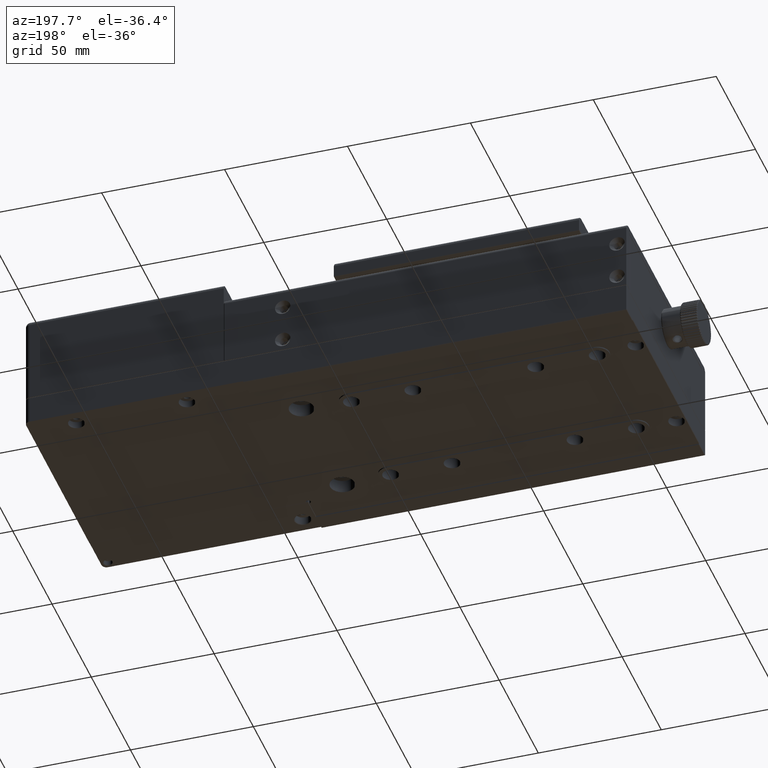
[diagram: clean part render]
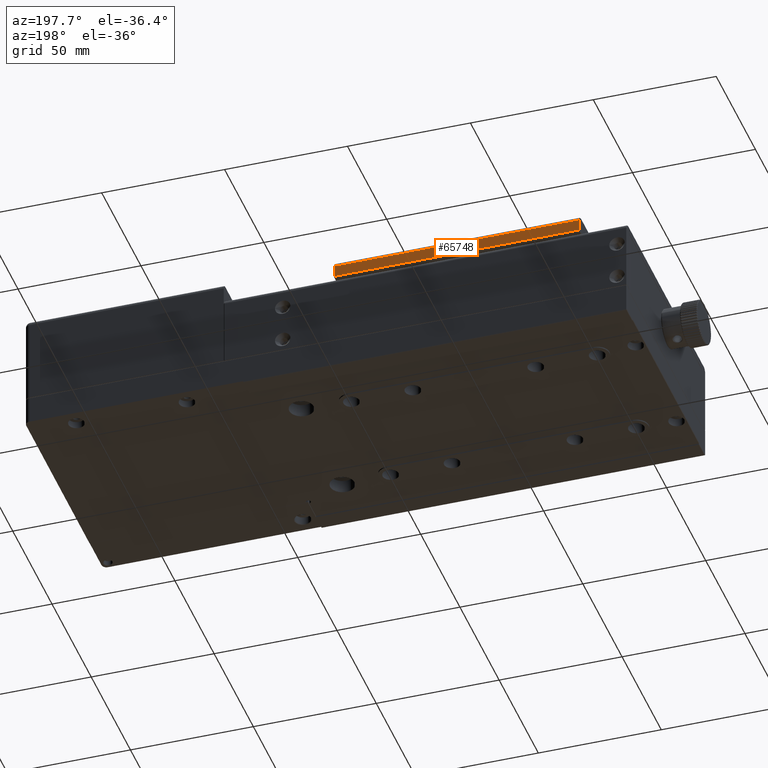
[diagram: same view with one face highlighted and labeled with its STEP entity id]
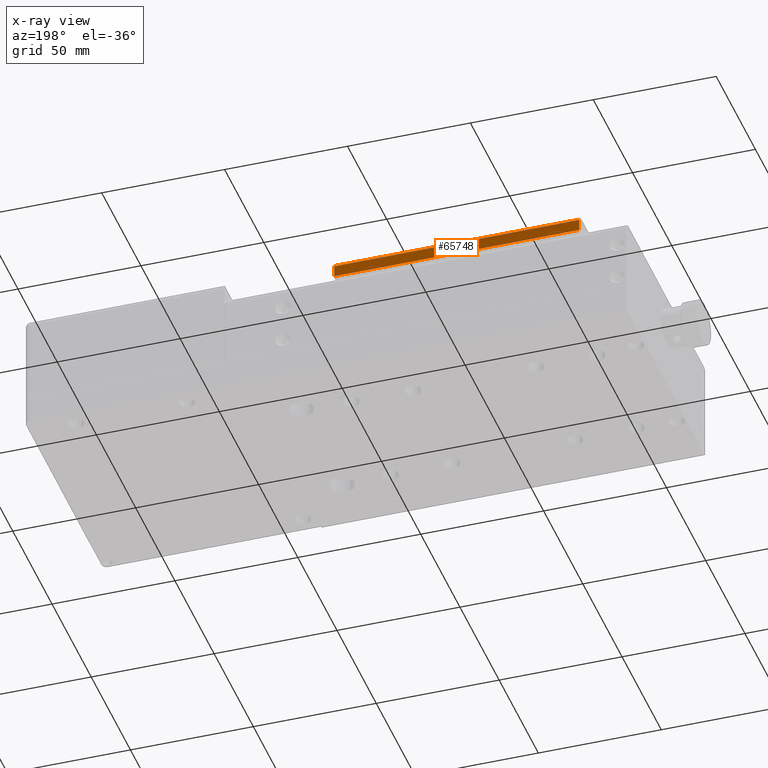
[diagram: x-ray of the same camera — body ghosted, the highlighted face saturated]
A machine part, auxiliary view. The second image highlights one B-rep face of the part: STEP entity #65748.
The next image is the same camera in x-ray: the body ghosted, the highlighted face saturated — about 0% of this face is hidden behind the body in this view.
In plain terms, the highlighted planar face has unit normal (0, -1, 0).
Its self-contained STEP definition (entity closure, byte-faithful):
#1956 = VERTEX_POINT ( 'NONE', #5916 ) ;
#4065 = VECTOR ( 'NONE', #5782, 1000.000000000000000 ) ;
#4462 = DIRECTION ( 'NONE',  ( 1.000000000000000000, 0.000000000000000000, 0.000000000000000000 ) ) ;
#4562 = ORIENTED_EDGE ( 'NONE', *, *, #65717, .T. ) ;
#5427 = LINE ( 'NONE', #17873, #4065 ) ;
#5782 = DIRECTION ( 'NONE',  ( -1.000000000000000000, 0.000000000000000000, 0.000000000000000000 ) ) ;
#5811 = CARTESIAN_POINT ( 'NONE',  ( -49.92461867118219487, 59.99424858742489874, 44.99999999999864286 ) ) ;
#5916 = CARTESIAN_POINT ( 'NONE',  ( -49.92461867118219487, 59.99424858742489874, 42.49999999999864997 ) ) ;
#6260 = VERTEX_POINT ( 'NONE', #12522 ) ;
#11400 = PLANE ( 'NONE',  #26406 ) ;
#12522 = CARTESIAN_POINT ( 'NONE',  ( -149.5246186711819973, 59.99424858742489874, 37.69999999999865281 ) ) ;
#14097 = VERTEX_POINT ( 'NONE', #33759 ) ;
#14422 = EDGE_LOOP ( 'NONE', ( #49289, #59623, #4562, #54656 ) ) ;
#15031 = EDGE_CURVE ( 'NONE', #14097, #6260, #5427, .T. ) ;
#17521 = DIRECTION ( 'NONE',  ( 0.000000000000000000, 0.000000000000000000, -1.000000000000000000 ) ) ;
#17873 = CARTESIAN_POINT ( 'NONE',  ( -149.7246186711821849, 59.99424858742489874, 37.69999999999865281 ) ) ;
#21330 = DIRECTION ( 'NONE',  ( 0.000000000000000000, 0.000000000000000000, -1.000000000000000000 ) ) ;
#22412 = CARTESIAN_POINT ( 'NONE',  ( -49.72461867118209966, 59.99424858742489874, 42.49999999999864997 ) ) ;
#22931 = CARTESIAN_POINT ( 'NONE',  ( -149.5246186711819973, 59.99424858742489874, 44.99999999999864286 ) ) ;
#26406 = AXIS2_PLACEMENT_3D ( 'NONE', #67395, #44335, #21330 ) ;
#27082 = LINE ( 'NONE', #5811, #62152 ) ;
#33759 = CARTESIAN_POINT ( 'NONE',  ( -49.92461867118219487, 59.99424858742489874, 37.69999999999865281 ) ) ;
#41486 = VECTOR ( 'NONE', #60613, 1000.000000000000000 ) ;
#42724 = EDGE_CURVE ( 'NONE', #1956, #14097, #27082, .T. ) ;
#43982 = FACE_OUTER_BOUND ( 'NONE', #14422, .T. ) ;
#44335 = DIRECTION ( 'NONE',  ( 0.000000000000000000, -1.000000000000000000, 0.000000000000000000 ) ) ;
#49289 = ORIENTED_EDGE ( 'NONE', *, *, #15031, .T. ) ;
#50228 = VERTEX_POINT ( 'NONE', #57723 ) ;
#54590 = LINE ( 'NONE', #22412, #57933 ) ;
#54656 = ORIENTED_EDGE ( 'NONE', *, *, #42724, .T. ) ;
#55834 = LINE ( 'NONE', #22931, #41486 ) ;
#57723 = CARTESIAN_POINT ( 'NONE',  ( -149.5246186711819973, 59.99424858742489874, 42.49999999999864997 ) ) ;
#57933 = VECTOR ( 'NONE', #4462, 1000.000000000000000 ) ;
#59623 = ORIENTED_EDGE ( 'NONE', *, *, #63655, .T. ) ;
#60613 = DIRECTION ( 'NONE',  ( 0.000000000000000000, 0.000000000000000000, 1.000000000000000000 ) ) ;
#62152 = VECTOR ( 'NONE', #17521, 1000.000000000000000 ) ;
#63655 = EDGE_CURVE ( 'NONE', #6260, #50228, #55834, .T. ) ;
#65717 = EDGE_CURVE ( 'NONE', #50228, #1956, #54590, .T. ) ;
#65748 = ADVANCED_FACE ( 'NONE', ( #43982 ), #11400, .F. ) ;
#67395 = CARTESIAN_POINT ( 'NONE',  ( -149.7246186711821849, 59.99424858742489874, 44.99999999999864286 ) ) ;